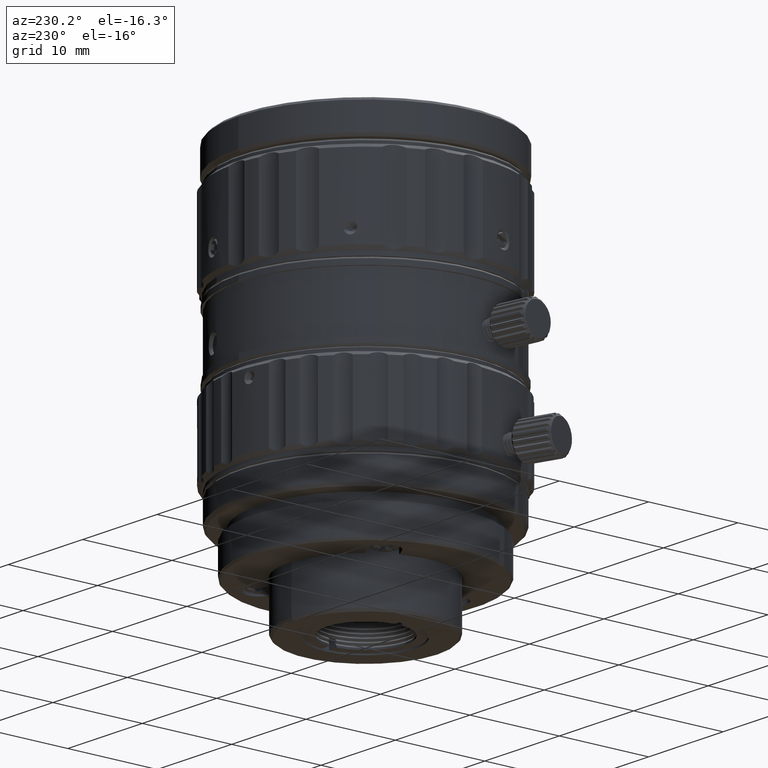
[diagram: clean part render]
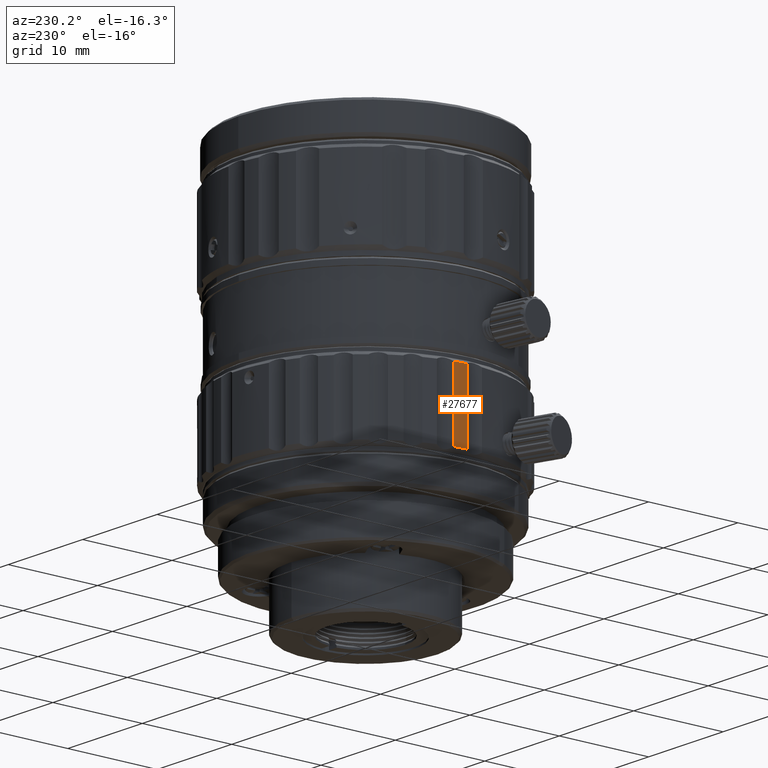
[diagram: same view with one face highlighted and labeled with its STEP entity id]
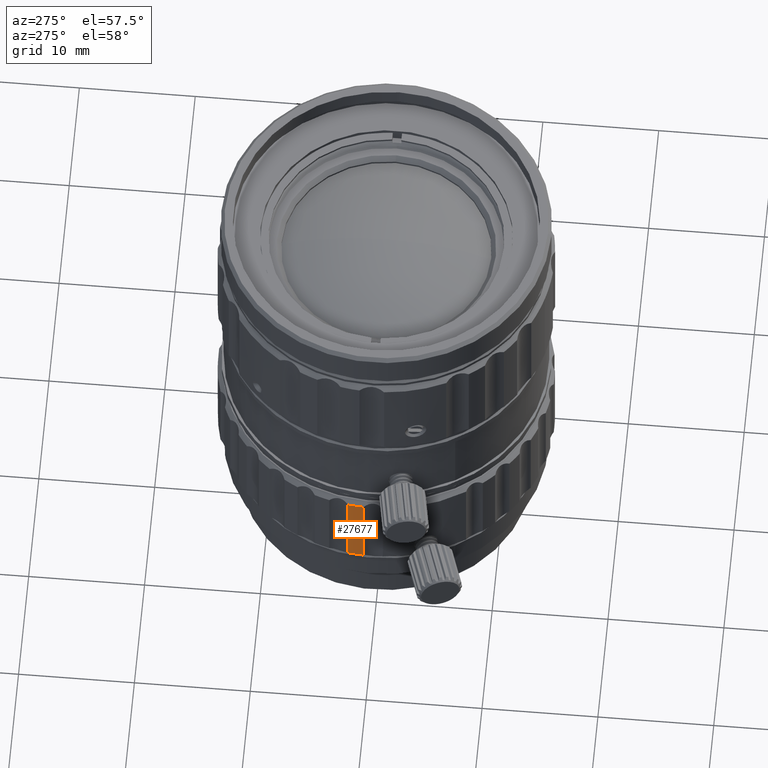
[diagram: same view with one face highlighted and labeled with its STEP entity id]
A machine part, auxiliary view. The second image highlights one B-rep face of the part: STEP entity #27677.
A second angle (auxiliary view) of the same face is appended — the face is thin or edge-on in the first view.
In plain terms, the highlighted cylindrical surface (partial cylindrical patch) has radius 14.5 mm, axis along (0, 0, -1).
Its self-contained STEP definition (entity closure, byte-faithful):
#275 = ORIENTED_EDGE ( 'NONE', *, *, #50580, .T. ) ;
#2430 = AXIS2_PLACEMENT_3D ( 'NONE', #28425, #39858, #33986 ) ;
#2489 = AXIS2_PLACEMENT_3D ( 'NONE', #42883, #47406, #58833 ) ;
#5305 = CYLINDRICAL_SURFACE ( 'NONE', #28942, 14.50000000000000355 ) ;
#6823 = EDGE_CURVE ( 'NONE', #52738, #18829, #6930, .T. ) ;
#6930 = CIRCLE ( 'NONE', #2489, 14.50000000000000000 ) ;
#9000 = CARTESIAN_POINT ( 'NONE',  ( -14.48263989858149969, 0.7093247267763540531, -1.682508299349910371E-11 ) ) ;
#9106 = CIRCLE ( 'NONE', #2430, 14.50000000000000000 ) ;
#14923 = LINE ( 'NONE', #9000, #24769 ) ;
#17876 = VERTEX_POINT ( 'NONE', #34075 ) ;
#18829 = VERTEX_POINT ( 'NONE', #29804 ) ;
#20263 = CARTESIAN_POINT ( 'NONE',  ( 0.000000000000000000, 0.000000000000000000, 34.57750000000000057 ) ) ;
#24769 = VECTOR ( 'NONE', #30200, 1000.000000000000000 ) ;
#26320 = CARTESIAN_POINT ( 'NONE',  ( -14.48263989857960077, 0.7093247267698050695, 14.55000000000000071 ) ) ;
#27677 = ADVANCED_FACE ( 'NONE', ( #67800 ), #5305, .T. ) ;
#28425 = CARTESIAN_POINT ( 'NONE',  ( 0.000000000000000000, 0.000000000000000000, 6.899999999999999467 ) ) ;
#28942 = AXIS2_PLACEMENT_3D ( 'NONE', #20263, #62609, #35892 ) ;
#29804 = CARTESIAN_POINT ( 'NONE',  ( -14.35189855104230006, 2.067125535756390242, 14.55000000000000071 ) ) ;
#30200 = DIRECTION ( 'NONE',  ( 0.000000000000000000, 0.000000000000000000, 1.000000000000000000 ) ) ;
#33986 = DIRECTION ( 'NONE',  ( 1.000000000000000000, 0.000000000000000000, 0.000000000000000000 ) ) ;
#34075 = CARTESIAN_POINT ( 'NONE',  ( -14.35189855104230006, 2.067125535756390242, 6.899999999999999467 ) ) ;
#35469 = ORIENTED_EDGE ( 'NONE', *, *, #6823, .T. ) ;
#35889 = ORIENTED_EDGE ( 'NONE', *, *, #48185, .T. ) ;
#35892 = DIRECTION ( 'NONE',  ( -0.2588190451024329763, -0.9659258262890917379, 0.000000000000000000 ) ) ;
#37721 = ORIENTED_EDGE ( 'NONE', *, *, #65425, .F. ) ;
#39858 = DIRECTION ( 'NONE',  ( 0.000000000000000000, 0.000000000000000000, 1.000000000000000000 ) ) ;
#40779 = LINE ( 'NONE', #45300, #67694 ) ;
#42746 = VERTEX_POINT ( 'NONE', #51778 ) ;
#42883 = CARTESIAN_POINT ( 'NONE',  ( 0.000000000000000000, 0.000000000000000000, 14.55000000000000071 ) ) ;
#44963 = DIRECTION ( 'NONE',  ( 0.000000000000000000, 0.000000000000000000, 1.000000000000000000 ) ) ;
#45300 = CARTESIAN_POINT ( 'NONE',  ( -14.35189855104100154, 2.067125535768449929, -1.169203622808370243E-11 ) ) ;
#47406 = DIRECTION ( 'NONE',  ( 0.000000000000000000, 0.000000000000000000, -1.000000000000000000 ) ) ;
#48185 = EDGE_CURVE ( 'NONE', #17876, #42746, #9106, .T. ) ;
#50580 = EDGE_CURVE ( 'NONE', #42746, #52738, #14923, .T. ) ;
#51778 = CARTESIAN_POINT ( 'NONE',  ( -14.48263989858029888, 0.7093247267690989677, 6.899999999999999467 ) ) ;
#52738 = VERTEX_POINT ( 'NONE', #26320 ) ;
#58833 = DIRECTION ( 'NONE',  ( -1.000000000000000000, 0.000000000000000000, 0.000000000000000000 ) ) ;
#62609 = DIRECTION ( 'NONE',  ( 0.000000000000000000, 0.000000000000000000, -1.000000000000000000 ) ) ;
#65425 = EDGE_CURVE ( 'NONE', #17876, #18829, #40779, .T. ) ;
#66780 = EDGE_LOOP ( 'NONE', ( #35889, #275, #35469, #37721 ) ) ;
#67694 = VECTOR ( 'NONE', #44963, 1000.000000000000000 ) ;
#67800 = FACE_OUTER_BOUND ( 'NONE', #66780, .T. ) ;